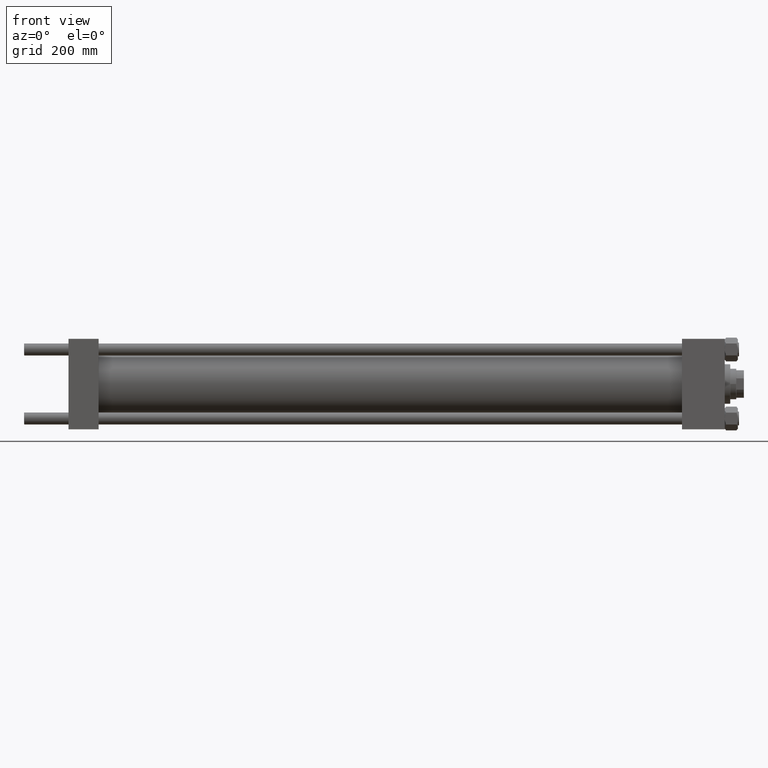
[diagram: clean part render]
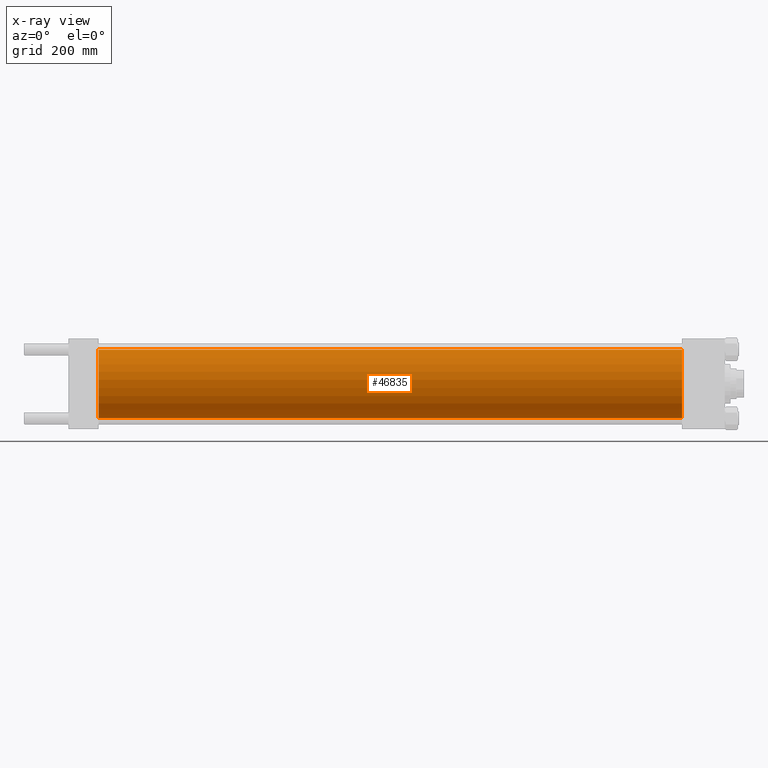
[diagram: x-ray — body ghosted, one internal face saturated and labeled with its STEP entity id]
A machine part, front view, then the same camera in x-ray: the body is ghosted and one INTERNAL B-rep face — a face not visible from any outside direction — is saturated and labeled: STEP entity #46835.
In plain terms, the highlighted cylindrical surface (edge-blend (fillet) strip) has radius 62.5 mm, axis along (-1, -0, -0).
Its self-contained STEP definition (entity closure, byte-faithful):
#1995 = DIRECTION ( 'NONE',  ( 0.000000000000000000, 0.000000000000000000, -1.000000000000000000 ) ) ;
#2141 = CARTESIAN_POINT ( 'NONE',  ( 1119.000000000000000, 7.654042494670957804E-15, -62.50000000000000000 ) ) ;
#3143 = CIRCLE ( 'NONE', #44579, 62.50000000000000000 ) ;
#3452 = DIRECTION ( 'NONE',  ( 1.000000000000000000, 0.000000000000000000, 0.000000000000000000 ) ) ;
#3777 = FACE_OUTER_BOUND ( 'NONE', #46767, .T. ) ;
#5415 = VERTEX_POINT ( 'NONE', #16050 ) ;
#5980 = ORIENTED_EDGE ( 'NONE', *, *, #7006, .F. ) ;
#7006 = EDGE_CURVE ( 'NONE', #5415, #27762, #20832, .T. ) ;
#7576 = DIRECTION ( 'NONE',  ( -1.000000000000000000, -0.000000000000000000, -0.000000000000000000 ) ) ;
#9498 = CARTESIAN_POINT ( 'NONE',  ( 1119.000000000000000, 0.000000000000000000, 62.50000000000000000 ) ) ;
#9649 = VECTOR ( 'NONE', #34338, 1000.000000000000000 ) ;
#10272 = EDGE_CURVE ( 'NONE', #38988, #5415, #30515, .T. ) ;
#11056 = ORIENTED_EDGE ( 'NONE', *, *, #44016, .T. ) ;
#11470 = DIRECTION ( 'NONE',  ( -1.000000000000000000, -0.000000000000000000, -0.000000000000000000 ) ) ;
#15386 = DIRECTION ( 'NONE',  ( 0.000000000000000000, 0.000000000000000000, -1.000000000000000000 ) ) ;
#15531 = CARTESIAN_POINT ( 'NONE',  ( 1119.000000000000000, 7.654042494670957804E-15, -62.50000000000000000 ) ) ;
#16050 = CARTESIAN_POINT ( 'NONE',  ( 55.00000000000000000, 0.000000000000000000, 62.50000000000000000 ) ) ;
#19536 = CARTESIAN_POINT ( 'NONE',  ( 1119.000000000000000, 0.000000000000000000, 0.000000000000000000 ) ) ;
#20832 = CIRCLE ( 'NONE', #37898, 62.50000000000000000 ) ;
#26916 = CYLINDRICAL_SURFACE ( 'NONE', #43911, 62.50000000000000000 ) ;
#27762 = VERTEX_POINT ( 'NONE', #49458 ) ;
#28704 = DIRECTION ( 'NONE',  ( 1.000000000000000000, 0.000000000000000000, 0.000000000000000000 ) ) ;
#30515 = LINE ( 'NONE', #35088, #9649 ) ;
#32282 = CARTESIAN_POINT ( 'NONE',  ( 1119.000000000000000, 0.000000000000000000, 0.000000000000000000 ) ) ;
#34338 = DIRECTION ( 'NONE',  ( -1.000000000000000000, -0.000000000000000000, -0.000000000000000000 ) ) ;
#35057 = DIRECTION ( 'NONE',  ( 0.000000000000000000, 0.000000000000000000, 1.000000000000000000 ) ) ;
#35088 = CARTESIAN_POINT ( 'NONE',  ( 1119.000000000000000, 0.000000000000000000, 62.50000000000000000 ) ) ;
#37898 = AXIS2_PLACEMENT_3D ( 'NONE', #50232, #3452, #15386 ) ;
#38191 = VECTOR ( 'NONE', #11470, 1000.000000000000000 ) ;
#38345 = EDGE_CURVE ( 'NONE', #38988, #45997, #3143, .T. ) ;
#38750 = ORIENTED_EDGE ( 'NONE', *, *, #10272, .F. ) ;
#38988 = VERTEX_POINT ( 'NONE', #9498 ) ;
#43510 = ORIENTED_EDGE ( 'NONE', *, *, #38345, .T. ) ;
#43911 = AXIS2_PLACEMENT_3D ( 'NONE', #19536, #7576, #35057 ) ;
#44016 = EDGE_CURVE ( 'NONE', #45997, #27762, #47047, .T. ) ;
#44579 = AXIS2_PLACEMENT_3D ( 'NONE', #32282, #28704, #1995 ) ;
#45997 = VERTEX_POINT ( 'NONE', #2141 ) ;
#46767 = EDGE_LOOP ( 'NONE', ( #43510, #11056, #5980, #38750 ) ) ;
#46835 = ADVANCED_FACE ( 'NONE', ( #3777 ), #26916, .F. ) ;
#47047 = LINE ( 'NONE', #15531, #38191 ) ;
#49458 = CARTESIAN_POINT ( 'NONE',  ( 55.00000000000000000, 7.654042494670957804E-15, -62.50000000000000000 ) ) ;
#50232 = CARTESIAN_POINT ( 'NONE',  ( 55.00000000000000000, 0.000000000000000000, 0.000000000000000000 ) ) ;